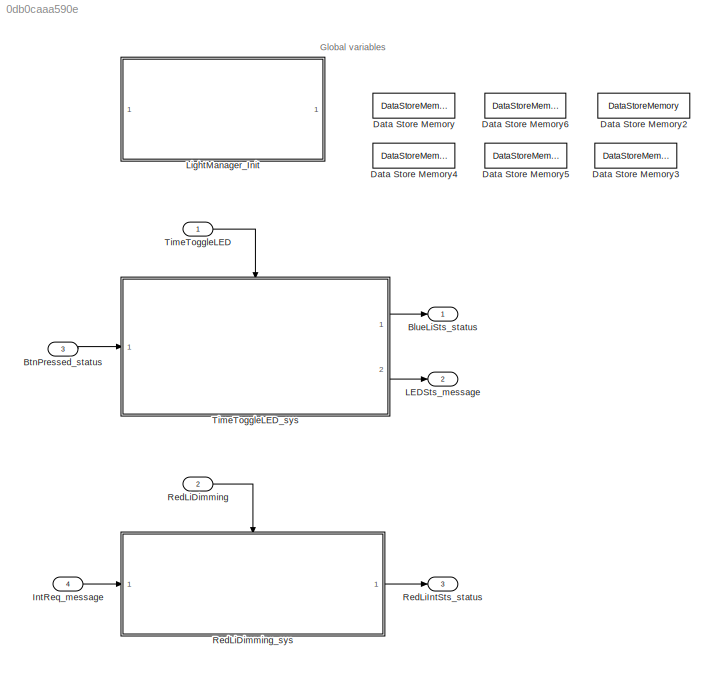
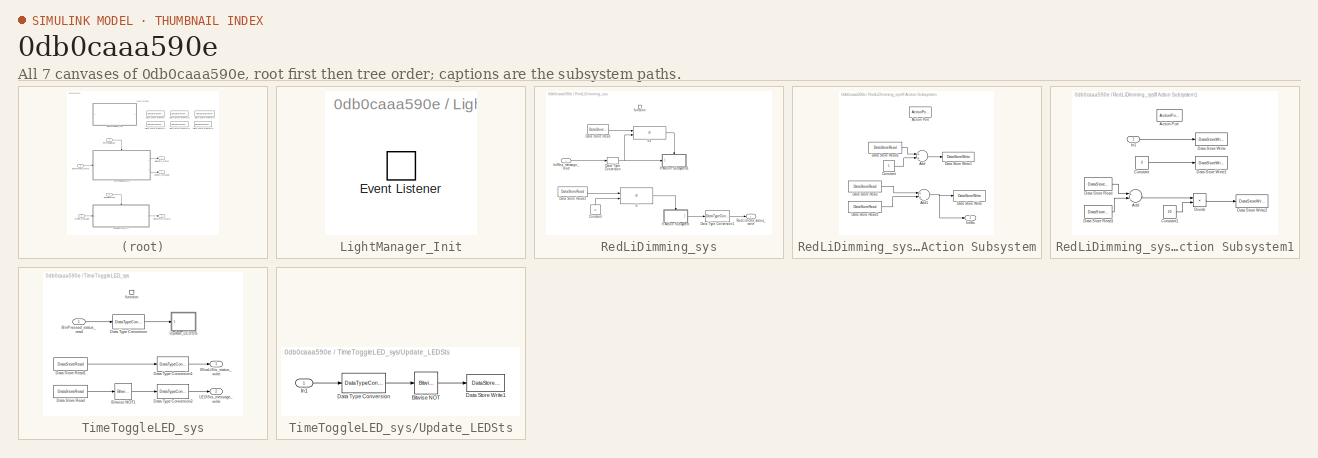
[diagram: thumbnail index - all 7 canvases of the model, root first then tree order]
MODEL slx_0db0caaa590e
KIND model
CONFIG AbsTol = auto
CONFIG EnableMultiTasking = off
CONFIG FixedStep = 0.01
CONFIG MaxStep = auto
CONFIG MinStep = auto
CONFIG RelTol = 1e-3
CONFIG SampleTimeConstraint = Unconstrained
CONFIG Solver = FixedStepDiscrete
CONFIG SolverName = FixedStepDiscrete
CONFIG StartTime = 0.0
CONFIG StopTime = 10.0
BLOCK [Outport] BlueLiSts_status
  IconDisplay = Port number
  OutDataTypeStr = LEDStatus
  PortDimensions = 1
  SamplingMode = Sample based
  SignalType = real
BLOCK [Inport] BtnPressed_status
  IconDisplay = Port number
  OutDataTypeStr = SwitchStatus
  Port = 3
  PortDimensions = 1
  SamplingMode = Sample based
  SignalType = real
BLOCK [DataStoreMemory] Data Store Memory
  DataStoreName = IntReq
  OutDataTypeStr = uint8
  ReadBeforeWriteMsg = warning
  ShowAdditionalParam = off
  WriteAfterReadMsg = warning
  WriteAfterWriteMsg = warning
BLOCK [DataStoreMemory] Data Store Memory2
  DataStoreName = PotValue
  InitialValue = 0.1
  OutDataTypeStr = uint8
  OutMax = [2.65]
  OutMin = [0.1]
  ReadBeforeWriteMsg = warning
  ShowAdditionalParam = off
  WriteAfterReadMsg = warning
  WriteAfterWriteMsg = warning
BLOCK [DataStoreMemory] Data Store Memory3
  DataStoreName = LEDSts
  InitialValue = 1
  OutDataTypeStr = boolean
  ReadBeforeWriteMsg = warning
  ShowAdditionalParam = off
  WriteAfterReadMsg = warning
  WriteAfterWriteMsg = warning
BLOCK [DataStoreMemory] Data Store Memory4
  DataStoreName = IntStep
  OutDataTypeStr = double
  ReadBeforeWriteMsg = warning
  ShowAdditionalParam = off
  WriteAfterReadMsg = warning
  WriteAfterWriteMsg = warning
BLOCK [DataStoreMemory] Data Store Memory5
  DataStoreName = IntStepCounter
  OutDataTypeStr = uint8
  ReadBeforeWriteMsg = warning
  ShowAdditionalParam = off
  WriteAfterReadMsg = warning
  WriteAfterWriteMsg = warning
BLOCK [DataStoreMemory] Data Store Memory6
  DataStoreName = IntSts
  OutDataTypeStr = double
  ReadBeforeWriteMsg = warning
  ShowAdditionalParam = off
  WriteAfterReadMsg = warning
  WriteAfterWriteMsg = warning
BLOCK [Inport] IntReq_message
  IconDisplay = Port number
  OutDataTypeStr = Int
  Port = 4
  PortDimensions = 1
  SamplingMode = Sample based
  SignalType = real
BLOCK [Outport] LEDSts_message
  IconDisplay = Port number
  OutDataTypeStr = Int
  Port = 2
  PortDimensions = 1
  SamplingMode = Sample based
  SignalType = real
BLOCK [SubSystem] LightManager_Init
  Ports = []
  RequestExecContextInheritance = off
BLOCK [EventListener] LightManager_Init/Event Listener
  EventName = reset
BLOCK [Inport] RedLiDimming
  IconDisplay = Port number
  OutputFunctionCall = on
  Port = 2
  SampleTime = 0.01
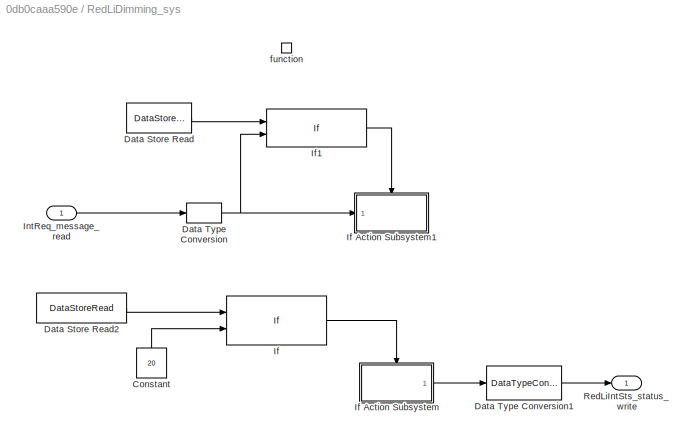
BLOCK [SubSystem] RedLiDimming_sys
  Ports = [1, 1, 0, 1]
  RequestExecContextInheritance = off
BLOCK [Constant] RedLiDimming_sys/Constant
  OutDataTypeStr = uint8
  Value = 20
BLOCK [DataStoreRead] RedLiDimming_sys/Data Store Read
  DataStoreName = IntReq
  Ports = [0, 1]
BLOCK [DataStoreRead] RedLiDimming_sys/Data Store Read2
  DataStoreName = IntStepCounter
  Ports = [0, 1]
BLOCK [DataTypeConversion] RedLiDimming_sys/Data Type Conversion
  OutDataTypeStr = uint8
  RndMeth = Floor
  SaturateOnIntegerOverflow = off
BLOCK [DataTypeConversion] RedLiDimming_sys/Data Type Conversion1
  RndMeth = Floor
  SaturateOnIntegerOverflow = off
BLOCK [If] RedLiDimming_sys/If
  IfExpression = u1 < u2
  NumInputs = 2
  Ports = [2, 1]
  ShowElse = off
BLOCK [SubSystem] RedLiDimming_sys/If Action Subsystem
  Ports = [0, 1, 0, 0, 0, 0, 0, 1]
  RequestExecContextInheritance = off
  TreatAsAtomicUnit = on
BLOCK [ActionPort] RedLiDimming_sys/If Action Subsystem/Action Port
  ActionPortLabel = if(u1 < u2)
BLOCK [Sum] RedLiDimming_sys/If Action Subsystem/Add
  InputSameDT = off
  OutDataTypeStr = Inherit: Inherit via internal rule
  Ports = [2, 1]
  SaturateOnIntegerOverflow = off
BLOCK [Sum] RedLiDimming_sys/If Action Subsystem/Add1
  InputSameDT = off
  OutDataTypeStr = Inherit: Inherit via internal rule
  Ports = [2, 1]
  SaturateOnIntegerOverflow = off
BLOCK [Constant] RedLiDimming_sys/If Action Subsystem/Constant
  OutDataTypeStr = uint8
BLOCK [DataStoreRead] RedLiDimming_sys/If Action Subsystem/Data Store Read
  DataStoreName = IntSts
  Ports = [0, 1]
BLOCK [DataStoreRead] RedLiDimming_sys/If Action Subsystem/Data Store Read1
  DataStoreName = IntStep
  Ports = [0, 1]
BLOCK [DataStoreRead] RedLiDimming_sys/If Action Subsystem/Data Store Read2
  DataStoreName = IntStepCounter
  Ports = [0, 1]
BLOCK [DataStoreWrite] RedLiDimming_sys/If Action Subsystem/Data Store Write
  DataStoreName = IntSts
  Ports = [1]
BLOCK [DataStoreWrite] RedLiDimming_sys/If Action Subsystem/Data Store Write1
  DataStoreName = IntStepCounter
  Ports = [1]
BLOCK [Outport] RedLiDimming_sys/If Action Subsystem/IntSts
  IconDisplay = Port number
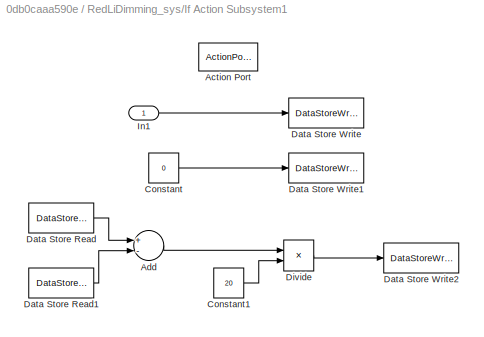
BLOCK [SubSystem] RedLiDimming_sys/If Action Subsystem1
  Ports = [1, 0, 0, 0, 0, 0, 0, 1]
  RequestExecContextInheritance = off
  TreatAsAtomicUnit = on
BLOCK [ActionPort] RedLiDimming_sys/If Action Subsystem1/Action Port
  ActionPortLabel = if(u1 ~= u2)
BLOCK [Sum] RedLiDimming_sys/If Action Subsystem1/Add
  InputSameDT = off
  Inputs = +-
  OutDataTypeStr = Inherit: Inherit via internal rule
  Ports = [2, 1]
  SaturateOnIntegerOverflow = off
BLOCK [Constant] RedLiDimming_sys/If Action Subsystem1/Constant
  OutDataTypeStr = uint8
  Value = 0
BLOCK [Constant] RedLiDimming_sys/If Action Subsystem1/Constant1
  Value = 20
BLOCK [DataStoreRead] RedLiDimming_sys/If Action Subsystem1/Data Store Read
  DataStoreName = IntReq
  Ports = [0, 1]
BLOCK [DataStoreRead] RedLiDimming_sys/If Action Subsystem1/Data Store Read1
  DataStoreName = IntSts
  Ports = [0, 1]
BLOCK [DataStoreWrite] RedLiDimming_sys/If Action Subsystem1/Data Store Write
  DataStoreName = IntReq
  Ports = [1]
BLOCK [DataStoreWrite] RedLiDimming_sys/If Action Subsystem1/Data Store Write1
  DataStoreName = IntStepCounter
  Ports = [1]
BLOCK [DataStoreWrite] RedLiDimming_sys/If Action Subsystem1/Data Store Write2
  DataStoreName = IntStep
  Ports = [1]
BLOCK [Product] RedLiDimming_sys/If Action Subsystem1/Divide
  InputSameDT = off
  Inputs = */
  OutDataTypeStr = Inherit: Inherit via internal rule
  Ports = [2, 1]
  RndMeth = Floor
  SaturateOnIntegerOverflow = off
BLOCK [Inport] RedLiDimming_sys/If Action Subsystem1/In1
  IconDisplay = Port number
BLOCK [If] RedLiDimming_sys/If1
  IfExpression = u1 ~= u2
  NumInputs = 2
  Ports = [2, 1]
  ShowElse = off
BLOCK [Inport] RedLiDimming_sys/IntReq_message_read
  IconDisplay = Port number
BLOCK [Outport] RedLiDimming_sys/RedLiIntSts_status_write
  EnsureOutportIsVirtual = on
  IconDisplay = Port number
BLOCK [TriggerPort] RedLiDimming_sys/function
  Ports = []
  SampleTime = -1
  SampleTimeType = periodic
  StatesWhenEnabling = held
  TriggerType = function-call
  VariantControl = (inherit)
BLOCK [Outport] RedLiIntSts_status
  IconDisplay = Port number
  OutDataTypeStr = IntensityStatus
  Port = 3
  PortDimensions = 1
  SamplingMode = Sample based
  SignalType = real
BLOCK [Inport] TimeToggleLED
  IconDisplay = Port number
  OutputFunctionCall = on
  SampleTime = 0.01
BLOCK [SubSystem] TimeToggleLED_sys
  Ports = [1, 2, 0, 1]
  RequestExecContextInheritance = off
BLOCK [Reference] TimeToggleLED_sys/Bitwise NOT1  REF=simulink/Logic and Bit
Operations/Bitwise
Operator
  Ports = [1, 1]
  SourceBlock = simulink/Logic and Bit\nOperations/Bitwise\nOperator
  SourceProductBaseCode = SL
  SourceProductName = Simulink
  SourceType = Bitwise Operator
BLOCK [Outport] TimeToggleLED_sys/BlueLiSts_status_write
  EnsureOutportIsVirtual = on
  IconDisplay = Port number
BLOCK [Inport] TimeToggleLED_sys/BtnPressed_status_read
  IconDisplay = Port number
BLOCK [DataStoreRead] TimeToggleLED_sys/Data Store Read
  DataStoreName = LEDSts
  Ports = [0, 1]
BLOCK [DataStoreRead] TimeToggleLED_sys/Data Store Read1
  DataStoreName = LEDSts
  Ports = [0, 1]
BLOCK [DataTypeConversion] TimeToggleLED_sys/Data Type Conversion
  RndMeth = Floor
  SaturateOnIntegerOverflow = off
BLOCK [DataTypeConversion] TimeToggleLED_sys/Data Type Conversion1
  RndMeth = Floor
  SaturateOnIntegerOverflow = off
BLOCK [DataTypeConversion] TimeToggleLED_sys/Data Type Conversion2
  RndMeth = Floor
  SaturateOnIntegerOverflow = off
BLOCK [Outport] TimeToggleLED_sys/LEDSts_message_write
  EnsureOutportIsVirtual = on
  IconDisplay = Port number
  Port = 2
BLOCK [SubSystem] TimeToggleLED_sys/Update_LEDSts
  Ports = [1]
  RequestExecContextInheritance = off
BLOCK [Reference] TimeToggleLED_sys/Update_LEDSts/Bitwise NOT  REF=simulink/Logic and Bit
Operations/Bitwise
Operator
  Ports = [1, 1]
  SourceBlock = simulink/Logic and Bit\nOperations/Bitwise\nOperator
  SourceProductBaseCode = SL
  SourceProductName = Simulink
  SourceType = Bitwise Operator
BLOCK [DataStoreWrite] TimeToggleLED_sys/Update_LEDSts/Data Store Write1
  DataStoreName = LEDSts
  Ports = [1]
BLOCK [DataTypeConversion] TimeToggleLED_sys/Update_LEDSts/Data Type Conversion
  RndMeth = Floor
  SaturateOnIntegerOverflow = off
BLOCK [Inport] TimeToggleLED_sys/Update_LEDSts/In1
  IconDisplay = Port number
BLOCK [TriggerPort] TimeToggleLED_sys/function
  Ports = []
  SampleTime = -1
  SampleTimeType = periodic
  StatesWhenEnabling = held
  TriggerType = function-call
  VariantControl = (inherit)
ANNOTATION (root): Global variables
LINE BtnPressed_status:1 -> TimeToggleLED_sys:1
LINE IntReq_message:1 -> RedLiDimming_sys:1
LINE RedLiDimming:1 -> RedLiDimming_sys:trigger
LINE RedLiDimming_sys/Constant:1 -> RedLiDimming_sys/If:2
LINE RedLiDimming_sys/Data Store Read2:1 -> RedLiDimming_sys/If:1
LINE RedLiDimming_sys/Data Store Read:1 -> RedLiDimming_sys/If1:1
LINE RedLiDimming_sys/Data Type Conversion1:1 -> RedLiDimming_sys/RedLiIntSts_status_write:1
NET RedLiDimming_sys/Data Type Conversion:1 -> RedLiDimming_sys/If Action Subsystem1:1, RedLiDimming_sys/If1:2
NET RedLiDimming_sys/If Action Subsystem/Add1:1 -> RedLiDimming_sys/If Action Subsystem/Data Store Write:1, RedLiDimming_sys/If Action Subsystem/IntSts:1
LINE RedLiDimming_sys/If Action Subsystem/Add:1 -> RedLiDimming_sys/If Action Subsystem/Data Store Write1:1
LINE RedLiDimming_sys/If Action Subsystem/Constant:1 -> RedLiDimming_sys/If Action Subsystem/Add:2
LINE RedLiDimming_sys/If Action Subsystem/Data Store Read1:1 -> RedLiDimming_sys/If Action Subsystem/Add1:2
LINE RedLiDimming_sys/If Action Subsystem/Data Store Read2:1 -> RedLiDimming_sys/If Action Subsystem/Add:1
LINE RedLiDimming_sys/If Action Subsystem/Data Store Read:1 -> RedLiDimming_sys/If Action Subsystem/Add1:1
LINE RedLiDimming_sys/If Action Subsystem1/Add:1 -> RedLiDimming_sys/If Action Subsystem1/Divide:1
LINE RedLiDimming_sys/If Action Subsystem1/Constant1:1 -> RedLiDimming_sys/If Action Subsystem1/Divide:2
LINE RedLiDimming_sys/If Action Subsystem1/Constant:1 -> RedLiDimming_sys/If Action Subsystem1/Data Store Write1:1
LINE RedLiDimming_sys/If Action Subsystem1/Data Store Read1:1 -> RedLiDimming_sys/If Action Subsystem1/Add:2
LINE RedLiDimming_sys/If Action Subsystem1/Data Store Read:1 -> RedLiDimming_sys/If Action Subsystem1/Add:1
LINE RedLiDimming_sys/If Action Subsystem1/Divide:1 -> RedLiDimming_sys/If Action Subsystem1/Data Store Write2:1
LINE RedLiDimming_sys/If Action Subsystem1/In1:1 -> RedLiDimming_sys/If Action Subsystem1/Data Store Write:1
LINE RedLiDimming_sys/If Action Subsystem:1 -> RedLiDimming_sys/Data Type Conversion1:1
LINE RedLiDimming_sys/If1:1 -> RedLiDimming_sys/If Action Subsystem1:ifaction
LINE RedLiDimming_sys/If:1 -> RedLiDimming_sys/If Action Subsystem:ifaction
LINE RedLiDimming_sys/IntReq_message_read:1 -> RedLiDimming_sys/Data Type Conversion:1
LINE RedLiDimming_sys:1 -> RedLiIntSts_status:1
LINE TimeToggleLED:1 -> TimeToggleLED_sys:trigger
LINE TimeToggleLED_sys/Bitwise NOT1:1 -> TimeToggleLED_sys/Data Type Conversion2:1
LINE TimeToggleLED_sys/BtnPressed_status_read:1 -> TimeToggleLED_sys/Data Type Conversion:1
LINE TimeToggleLED_sys/Data Store Read1:1 -> TimeToggleLED_sys/Data Type Conversion1:1
LINE TimeToggleLED_sys/Data Store Read:1 -> TimeToggleLED_sys/Bitwise NOT1:1
LINE TimeToggleLED_sys/Data Type Conversion1:1 -> TimeToggleLED_sys/BlueLiSts_status_write:1
LINE TimeToggleLED_sys/Data Type Conversion2:1 -> TimeToggleLED_sys/LEDSts_message_write:1
LINE TimeToggleLED_sys/Data Type Conversion:1 -> TimeToggleLED_sys/Update_LEDSts:1
LINE TimeToggleLED_sys/Update_LEDSts/Bitwise NOT:1 -> TimeToggleLED_sys/Update_LEDSts/Data Store Write1:1
LINE TimeToggleLED_sys/Update_LEDSts/Data Type Conversion:1 -> TimeToggleLED_sys/Update_LEDSts/Bitwise NOT:1
LINE TimeToggleLED_sys/Update_LEDSts/In1:1 -> TimeToggleLED_sys/Update_LEDSts/Data Type Conversion:1
LINE TimeToggleLED_sys:1 -> BlueLiSts_status:1
LINE TimeToggleLED_sys:2 -> LEDSts_message:1
note: NET lines group one-source signal fan-out (src -> all destinations, sorted); 1:1 wires keep LINE
